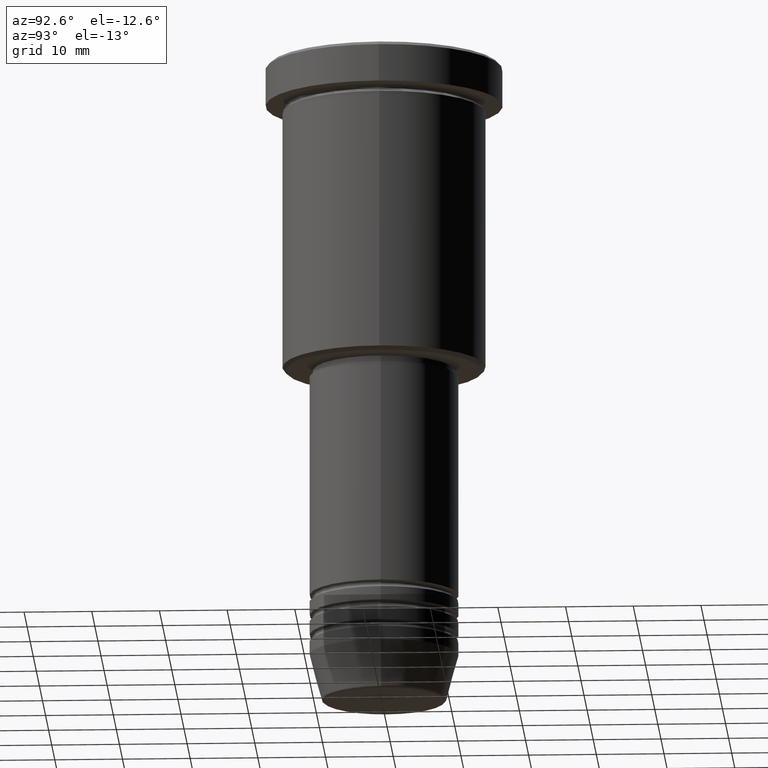
[diagram: clean part render]
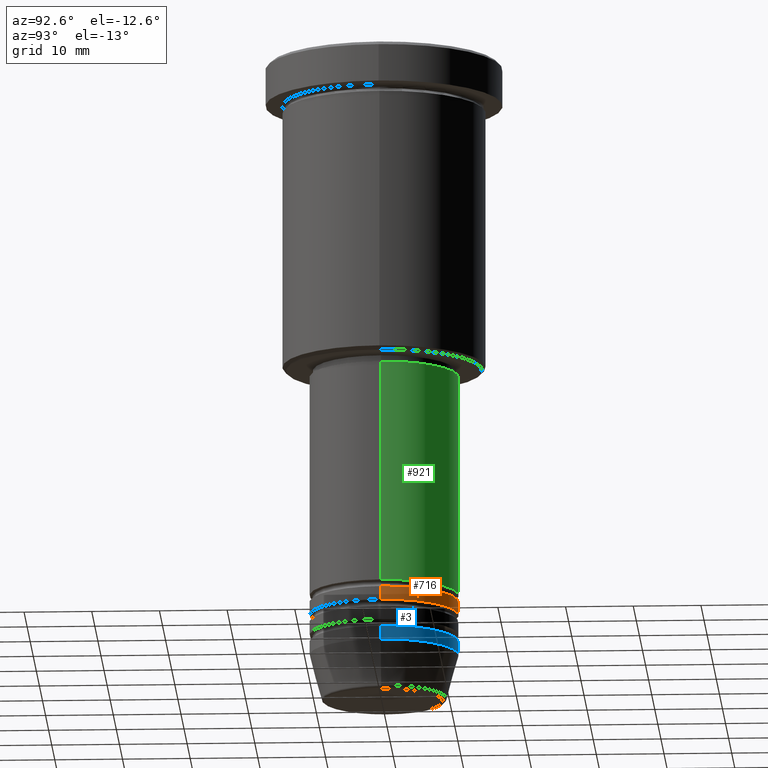
[diagram: same view with three faces highlighted in distinct colors, each labeled with its STEP entity id]
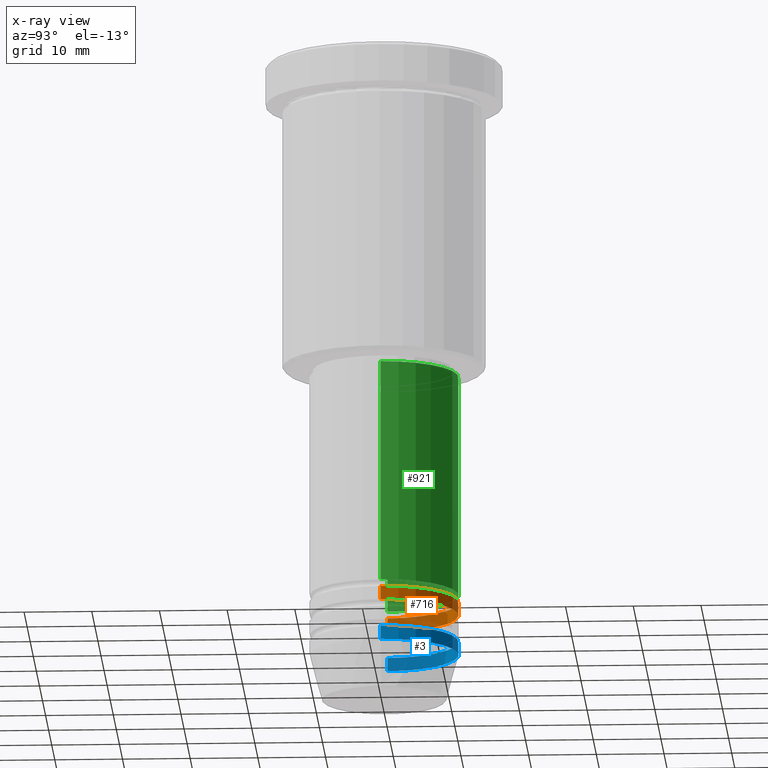
[diagram: x-ray of the same camera — body ghosted, the three highlighted faces saturated]
A machine part, auxiliary view with three faces highlighted in distinct colors.
The next image is the same camera in x-ray (body ghosted, the three faces saturated) — at least one of them is partly hidden behind the body in this view.
Their STEP definitions:

[orange] entity #716 — the highlighted cylindrical surface (partial cylindrical patch) has radius 11 mm, axis along (-0, -0, 1).
#1 = VERTEX_POINT ( 'NONE', #761 ) ;
#10 = ORIENTED_EDGE ( 'NONE', *, *, #1078, .T. ) ;
#26 = DIRECTION ( 'NONE',  ( 1.000000000000000000, 0.000000000000000000, 0.000000000000000000 ) ) ;
#38 = EDGE_LOOP ( 'NONE', ( #1040, #10, #370, #587 ) ) ;
#48 = VERTEX_POINT ( 'NONE', #318 ) ;
#115 = VERTEX_POINT ( 'NONE', #479 ) ;
#129 = FACE_OUTER_BOUND ( 'NONE', #38, .T. ) ;
#137 = DIRECTION ( 'NONE',  ( 1.000000000000000000, 0.000000000000000000, 0.000000000000000000 ) ) ;
#274 = AXIS2_PLACEMENT_3D ( 'NONE', #559, #833, #26 ) ;
#311 = DIRECTION ( 'NONE',  ( -0.000000000000000000, -0.000000000000000000, 1.000000000000000000 ) ) ;
#318 = CARTESIAN_POINT ( 'NONE',  ( 11.00000000000000000, 0.000000000000000000, -80.99999999999997158 ) ) ;
#330 = DIRECTION ( 'NONE',  ( -0.000000000000000000, -0.000000000000000000, 1.000000000000000000 ) ) ;
#340 = DIRECTION ( 'NONE',  ( 1.000000000000000000, 0.000000000000000000, 0.000000000000000000 ) ) ;
#347 = AXIS2_PLACEMENT_3D ( 'NONE', #1135, #311, #340 ) ;
#352 = CARTESIAN_POINT ( 'NONE',  ( 11.00000000000000000, 0.000000000000000000, 0.000000000000000000 ) ) ;
#370 = ORIENTED_EDGE ( 'NONE', *, *, #606, .F. ) ;
#371 = CARTESIAN_POINT ( 'NONE',  ( 11.00000000000000000, 0.000000000000000000, -82.99999999999997158 ) ) ;
#433 = LINE ( 'NONE', #352, #889 ) ;
#441 = AXIS2_PLACEMENT_3D ( 'NONE', #687, #591, #137 ) ;
#460 = CIRCLE ( 'NONE', #441, 11.00000000000000000 ) ;
#479 = CARTESIAN_POINT ( 'NONE',  ( -11.00000000000000000, 1.347111479062088405E-15, -82.99999999999997158 ) ) ;
#481 = EDGE_CURVE ( 'NONE', #940, #115, #938, .T. ) ;
#493 = CARTESIAN_POINT ( 'NONE',  ( -11.00000000000000000, 1.347111479062088405E-15, 0.000000000000000000 ) ) ;
#521 = EDGE_CURVE ( 'NONE', #940, #48, #433, .T. ) ;
#559 = CARTESIAN_POINT ( 'NONE',  ( 0.000000000000000000, 0.000000000000000000, -82.99999999999997158 ) ) ;
#566 = VECTOR ( 'NONE', #330, 1000.000000000000000 ) ;
#587 = ORIENTED_EDGE ( 'NONE', *, *, #521, .F. ) ;
#591 = DIRECTION ( 'NONE',  ( -0.000000000000000000, -0.000000000000000000, 1.000000000000000000 ) ) ;
#606 = EDGE_CURVE ( 'NONE', #48, #1, #460, .T. ) ;
#687 = CARTESIAN_POINT ( 'NONE',  ( 0.000000000000000000, 0.000000000000000000, -80.99999999999997158 ) ) ;
#716 = ADVANCED_FACE ( 'NONE', ( #129 ), #764, .T. ) ;
#761 = CARTESIAN_POINT ( 'NONE',  ( -11.00000000000000000, 1.347111479062088405E-15, -80.99999999999997158 ) ) ;
#764 = CYLINDRICAL_SURFACE ( 'NONE', #347, 11.00000000000000000 ) ;
#833 = DIRECTION ( 'NONE',  ( -0.000000000000000000, -0.000000000000000000, 1.000000000000000000 ) ) ;
#889 = VECTOR ( 'NONE', #1082, 1000.000000000000000 ) ;
#938 = CIRCLE ( 'NONE', #274, 11.00000000000000000 ) ;
#940 = VERTEX_POINT ( 'NONE', #371 ) ;
#1034 = LINE ( 'NONE', #493, #566 ) ;
#1040 = ORIENTED_EDGE ( 'NONE', *, *, #481, .T. ) ;
#1078 = EDGE_CURVE ( 'NONE', #115, #1, #1034, .T. ) ;
#1082 = DIRECTION ( 'NONE',  ( -0.000000000000000000, -0.000000000000000000, 1.000000000000000000 ) ) ;
#1135 = CARTESIAN_POINT ( 'NONE',  ( 0.000000000000000000, 0.000000000000000000, 0.000000000000000000 ) ) ;

[blue] entity #3 — the highlighted cylindrical surface (partial cylindrical patch) has radius 11 mm, axis along (-0, -0, 1).
#3 = ADVANCED_FACE ( 'NONE', ( #1131 ), #308, .T. ) ;
#53 = ORIENTED_EDGE ( 'NONE', *, *, #1098, .F. ) ;
#68 = VECTOR ( 'NONE', #1126, 1000.000000000000000 ) ;
#93 = CARTESIAN_POINT ( 'NONE',  ( -11.00000000000000000, 1.347111479062088405E-15, 0.000000000000000000 ) ) ;
#100 = VERTEX_POINT ( 'NONE', #656 ) ;
#111 = DIRECTION ( 'NONE',  ( -0.000000000000000000, -0.000000000000000000, 1.000000000000000000 ) ) ;
#122 = VECTOR ( 'NONE', #792, 1000.000000000000000 ) ;
#156 = EDGE_LOOP ( 'NONE', ( #243, #1127, #896, #53 ) ) ;
#203 = DIRECTION ( 'NONE',  ( -0.000000000000000000, -0.000000000000000000, 1.000000000000000000 ) ) ;
#212 = AXIS2_PLACEMENT_3D ( 'NONE', #820, #468, #732 ) ;
#222 = CARTESIAN_POINT ( 'NONE',  ( 11.00000000000000000, 0.000000000000000000, -89.00000000000000000 ) ) ;
#243 = ORIENTED_EDGE ( 'NONE', *, *, #428, .T. ) ;
#260 = CIRCLE ( 'NONE', #212, 11.00000000000000000 ) ;
#270 = LINE ( 'NONE', #93, #122 ) ;
#286 = CARTESIAN_POINT ( 'NONE',  ( 0.000000000000000000, 0.000000000000000000, -89.00000000000000000 ) ) ;
#308 = CYLINDRICAL_SURFACE ( 'NONE', #1050, 11.00000000000000000 ) ;
#339 = VERTEX_POINT ( 'NONE', #222 ) ;
#344 = AXIS2_PLACEMENT_3D ( 'NONE', #286, #111, #1183 ) ;
#428 = EDGE_CURVE ( 'NONE', #339, #100, #621, .T. ) ;
#468 = DIRECTION ( 'NONE',  ( -0.000000000000000000, -0.000000000000000000, 1.000000000000000000 ) ) ;
#561 = DIRECTION ( 'NONE',  ( 1.000000000000000000, 0.000000000000000000, 0.000000000000000000 ) ) ;
#601 = CARTESIAN_POINT ( 'NONE',  ( 11.00000000000000000, 0.000000000000000000, 0.000000000000000000 ) ) ;
#621 = CIRCLE ( 'NONE', #344, 11.00000000000000000 ) ;
#653 = CARTESIAN_POINT ( 'NONE',  ( 0.000000000000000000, 0.000000000000000000, 0.000000000000000000 ) ) ;
#656 = CARTESIAN_POINT ( 'NONE',  ( -11.00000000000000000, 1.347111479062088405E-15, -89.00000000000000000 ) ) ;
#732 = DIRECTION ( 'NONE',  ( 1.000000000000000000, 0.000000000000000000, 0.000000000000000000 ) ) ;
#792 = DIRECTION ( 'NONE',  ( -0.000000000000000000, -0.000000000000000000, 1.000000000000000000 ) ) ;
#820 = CARTESIAN_POINT ( 'NONE',  ( 0.000000000000000000, 0.000000000000000000, -87.00000000000000000 ) ) ;
#847 = VERTEX_POINT ( 'NONE', #1168 ) ;
#856 = EDGE_CURVE ( 'NONE', #100, #847, #270, .T. ) ;
#861 = LINE ( 'NONE', #601, #68 ) ;
#896 = ORIENTED_EDGE ( 'NONE', *, *, #974, .F. ) ;
#964 = CARTESIAN_POINT ( 'NONE',  ( 11.00000000000000000, 0.000000000000000000, -87.00000000000000000 ) ) ;
#974 = EDGE_CURVE ( 'NONE', #1130, #847, #260, .T. ) ;
#1050 = AXIS2_PLACEMENT_3D ( 'NONE', #653, #203, #561 ) ;
#1098 = EDGE_CURVE ( 'NONE', #339, #1130, #861, .T. ) ;
#1126 = DIRECTION ( 'NONE',  ( -0.000000000000000000, -0.000000000000000000, 1.000000000000000000 ) ) ;
#1127 = ORIENTED_EDGE ( 'NONE', *, *, #856, .T. ) ;
#1130 = VERTEX_POINT ( 'NONE', #964 ) ;
#1131 = FACE_OUTER_BOUND ( 'NONE', #156, .T. ) ;
#1168 = CARTESIAN_POINT ( 'NONE',  ( -11.00000000000000000, 1.347111479062088405E-15, -87.00000000000000000 ) ) ;
#1183 = DIRECTION ( 'NONE',  ( 1.000000000000000000, 0.000000000000000000, 0.000000000000000000 ) ) ;

[green] entity #921 — the highlighted cylindrical surface (partial cylindrical patch) has radius 11 mm, axis along (-0, -0, 1).
#31 = AXIS2_PLACEMENT_3D ( 'NONE', #1005, #288, #102 ) ;
#102 = DIRECTION ( 'NONE',  ( 1.000000000000000000, 0.000000000000000000, 0.000000000000000000 ) ) ;
#104 = CIRCLE ( 'NONE', #920, 11.00000000000000000 ) ;
#133 = LINE ( 'NONE', #398, #639 ) ;
#146 = CARTESIAN_POINT ( 'NONE',  ( 11.00000000000000000, 0.000000000000000000, -46.99999999999997158 ) ) ;
#199 = EDGE_CURVE ( 'NONE', #400, #839, #104, .T. ) ;
#219 = DIRECTION ( 'NONE',  ( 1.000000000000000000, 0.000000000000000000, 0.000000000000000000 ) ) ;
#230 = VECTOR ( 'NONE', #1066, 1000.000000000000000 ) ;
#288 = DIRECTION ( 'NONE',  ( -0.000000000000000000, -0.000000000000000000, 1.000000000000000000 ) ) ;
#299 = DIRECTION ( 'NONE',  ( -0.000000000000000000, -0.000000000000000000, 1.000000000000000000 ) ) ;
#326 = CARTESIAN_POINT ( 'NONE',  ( -11.00000000000000000, 1.347111479062088405E-15, -79.99999999999997158 ) ) ;
#338 = EDGE_CURVE ( 'NONE', #568, #400, #133, .T. ) ;
#398 = CARTESIAN_POINT ( 'NONE',  ( 11.00000000000000000, 0.000000000000000000, 0.000000000000000000 ) ) ;
#400 = VERTEX_POINT ( 'NONE', #146 ) ;
#455 = CARTESIAN_POINT ( 'NONE',  ( 0.000000000000000000, 0.000000000000000000, -46.99999999999997158 ) ) ;
#547 = AXIS2_PLACEMENT_3D ( 'NONE', #570, #299, #219 ) ;
#568 = VERTEX_POINT ( 'NONE', #1033 ) ;
#570 = CARTESIAN_POINT ( 'NONE',  ( 0.000000000000000000, 0.000000000000000000, -79.99999999999997158 ) ) ;
#595 = DIRECTION ( 'NONE',  ( -0.000000000000000000, -0.000000000000000000, 1.000000000000000000 ) ) ;
#596 = EDGE_LOOP ( 'NONE', ( #771, #1180, #731, #906 ) ) ;
#629 = VERTEX_POINT ( 'NONE', #326 ) ;
#632 = LINE ( 'NONE', #1062, #230 ) ;
#636 = DIRECTION ( 'NONE',  ( 1.000000000000000000, 0.000000000000000000, 0.000000000000000000 ) ) ;
#639 = VECTOR ( 'NONE', #595, 1000.000000000000000 ) ;
#670 = CYLINDRICAL_SURFACE ( 'NONE', #31, 11.00000000000000000 ) ;
#731 = ORIENTED_EDGE ( 'NONE', *, *, #199, .F. ) ;
#759 = EDGE_CURVE ( 'NONE', #629, #839, #632, .T. ) ;
#771 = ORIENTED_EDGE ( 'NONE', *, *, #991, .T. ) ;
#839 = VERTEX_POINT ( 'NONE', #1084 ) ;
#906 = ORIENTED_EDGE ( 'NONE', *, *, #338, .F. ) ;
#914 = FACE_OUTER_BOUND ( 'NONE', #596, .T. ) ;
#920 = AXIS2_PLACEMENT_3D ( 'NONE', #455, #1085, #636 ) ;
#921 = ADVANCED_FACE ( 'NONE', ( #914 ), #670, .T. ) ;
#991 = EDGE_CURVE ( 'NONE', #568, #629, #1096, .T. ) ;
#1005 = CARTESIAN_POINT ( 'NONE',  ( 0.000000000000000000, 0.000000000000000000, 0.000000000000000000 ) ) ;
#1033 = CARTESIAN_POINT ( 'NONE',  ( 11.00000000000000000, 0.000000000000000000, -79.99999999999997158 ) ) ;
#1062 = CARTESIAN_POINT ( 'NONE',  ( -11.00000000000000000, 1.347111479062088405E-15, 0.000000000000000000 ) ) ;
#1066 = DIRECTION ( 'NONE',  ( -0.000000000000000000, -0.000000000000000000, 1.000000000000000000 ) ) ;
#1084 = CARTESIAN_POINT ( 'NONE',  ( -11.00000000000000000, 1.347111479062088405E-15, -46.99999999999997158 ) ) ;
#1085 = DIRECTION ( 'NONE',  ( -0.000000000000000000, -0.000000000000000000, 1.000000000000000000 ) ) ;
#1096 = CIRCLE ( 'NONE', #547, 11.00000000000000000 ) ;
#1180 = ORIENTED_EDGE ( 'NONE', *, *, #759, .T. ) ;